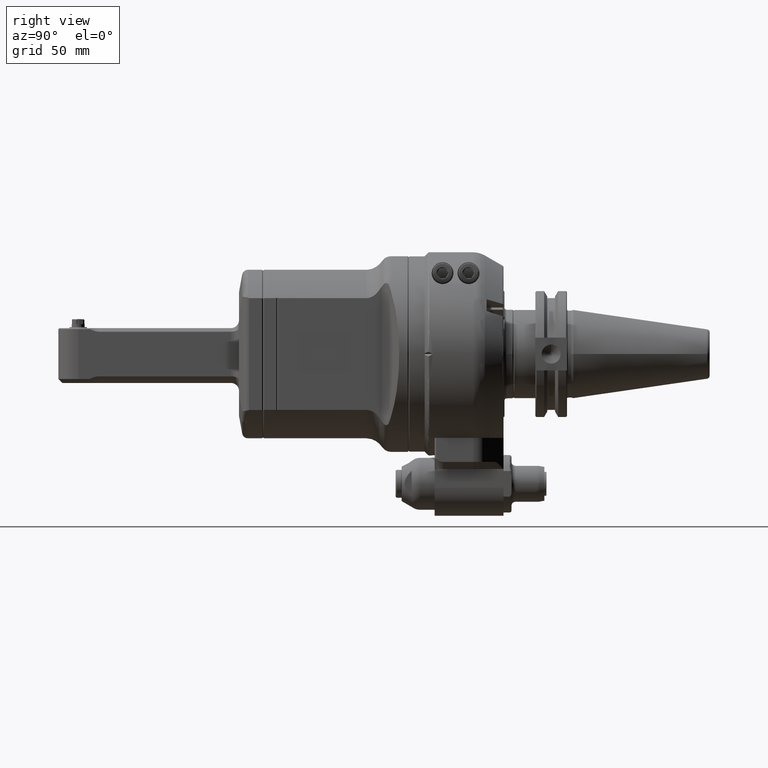
[diagram: clean part render]
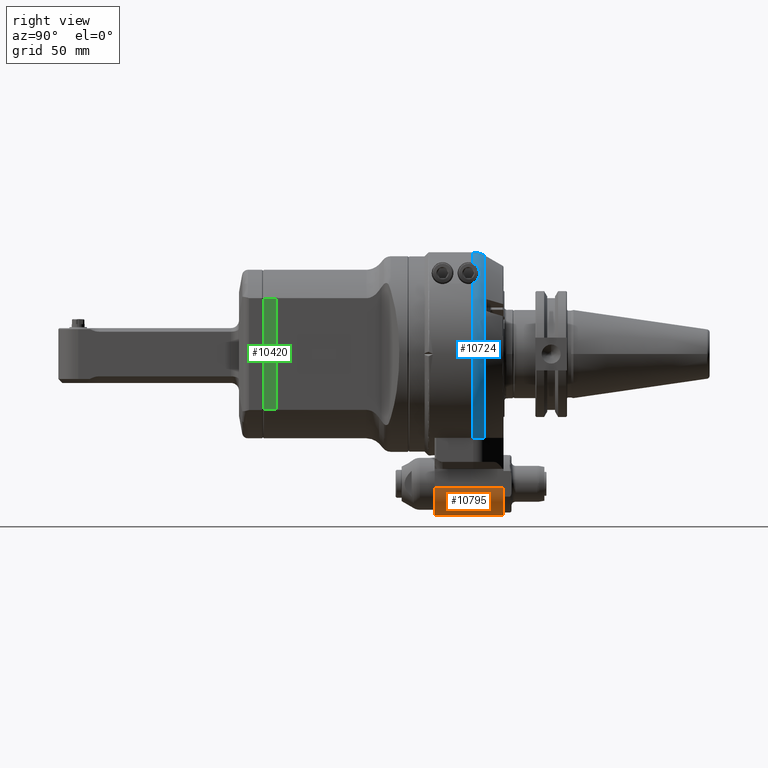
[diagram: same view with three faces highlighted in distinct colors, each labeled with its STEP entity id]
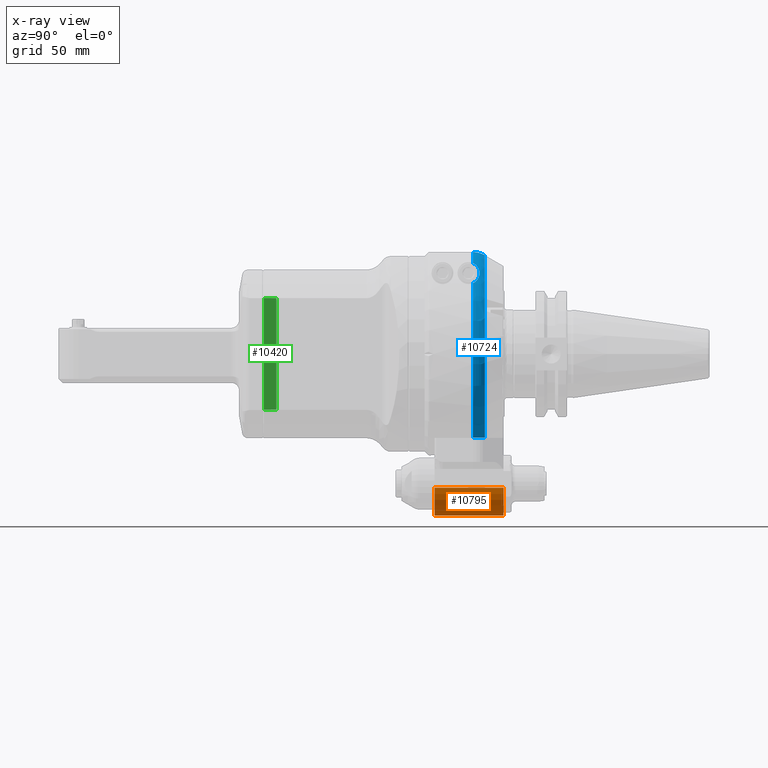
[diagram: x-ray of the same camera — body ghosted, the three highlighted faces saturated]
A machine part, right view with three faces highlighted in distinct colors.
The next image is the same camera in x-ray (body ghosted, the three faces saturated) — at least one of them is partly hidden behind the body in this view.
Their STEP definitions:

[orange] entity #10795 — the highlighted cylindrical surface (edge-blend (fillet) strip) has radius 14 mm, axis along (0, 1, 0).
#1026=LINE('',#20557,#1758);
#1027=LINE('',#20572,#1759);
#1758=VECTOR('',#14537,1.35826771653543);
#1759=VECTOR('',#14546,1.35826771653543);
#2132=CYLINDRICAL_SURFACE('',#11974,0.551181102362205);
#2596=FACE_OUTER_BOUND('',#3290,.T.);
#3290=EDGE_LOOP('',(#8838,#8839,#8840,#8841));
#3770=CIRCLE('',#11601,0.551181102362205);
#3796=CIRCLE('',#11645,0.551181102362205);
#4520=VERTEX_POINT('',#17607);
#4521=VERTEX_POINT('',#17609);
#4590=VERTEX_POINT('',#17998);
#4591=VERTEX_POINT('',#18000);
#5751=EDGE_CURVE('',#4520,#4521,#3770,.T.);
#5837=EDGE_CURVE('',#4590,#4591,#3796,.T.);
#6228=EDGE_CURVE('',#4590,#4521,#1026,.T.);
#6232=EDGE_CURVE('',#4520,#4591,#1027,.T.);
#8838=ORIENTED_EDGE('',*,*,#6232,.T.);
#8839=ORIENTED_EDGE('',*,*,#5837,.F.);
#8840=ORIENTED_EDGE('',*,*,#6228,.T.);
#8841=ORIENTED_EDGE('',*,*,#5751,.F.);
#10795=ADVANCED_FACE('',(#2596),#2132,.T.);
#11601=AXIS2_PLACEMENT_3D('',#17610,#13582,#13583);
#11645=AXIS2_PLACEMENT_3D('',#18001,#13719,#13720);
#11974=AXIS2_PLACEMENT_3D('',#20571,#14544,#14545);
#13582=DIRECTION('center_axis',(0.,-1.,0.));
#13583=DIRECTION('ref_axis',(0.,0.,-1.));
#13719=DIRECTION('center_axis',(0.,1.,0.));
#13720=DIRECTION('ref_axis',(1.,0.,0.));
#14537=DIRECTION('',(0.,-1.,0.));
#14544=DIRECTION('center_axis',(0.,1.,0.));
#14545=DIRECTION('ref_axis',(0.,0.,1.));
#14546=DIRECTION('',(0.,1.,0.));
#17607=CARTESIAN_POINT('',(0.0393700787401575,0.196850393700787,-3.18897637795276));
#17609=CARTESIAN_POINT('',(0.590551181102362,0.196850393700787,-2.63779527559055));
#17610=CARTESIAN_POINT('Origin',(0.0393700787401575,0.196850393700787,-2.63779527559055));
#17998=CARTESIAN_POINT('',(0.590551181102362,1.55511811023622,-2.63779527559055));
#18000=CARTESIAN_POINT('',(0.0393700787401575,1.55511811023622,-3.18897637795276));
#18001=CARTESIAN_POINT('Origin',(0.0393700787401575,1.55511811023622,-2.63779527559055));
#20557=CARTESIAN_POINT('',(0.590551181102362,1.55511811023622,-2.63779527559055));
#20571=CARTESIAN_POINT('Origin',(0.0393700787401575,1.22047244094488,-2.63779527559055));
#20572=CARTESIAN_POINT('',(0.0393700787401575,0.196850393700787,-3.18897637795276));

[blue] entity #10724 — the highlighted toroidal blend (fillet) surface has major radius 39 mm and minor (blend) radius 12 mm.
#240=TOROIDAL_SURFACE('',#11848,1.53543307086614,0.47244094488189);
#470=B_SPLINE_CURVE_WITH_KNOTS('',3,(#19716,#19717,#19718,#19719,#19720,
#19721,#19722,#19723,#19724,#19725,#19726,#19727,#19728,#19729,#19730,#19731,
#19732,#19733,#19734,#19735,#19736,#19737,#19738,#19739,#19740,#19741,#19742,
#19743,#19744,#19745,#19746,#19747,#19748,#19749,#19750,#19751,#19752,#19753,
#19754,#19755,#19756,#19757,#19758,#19759,#19760,#19761,#19762,#19763,#19764),
 .UNSPECIFIED.,.F.,.F.,(4,3,3,3,3,3,3,3,3,3,3,3,3,3,3,3,4),(1.63314830216971E-10,
0.0625,0.125,0.1875,0.25,0.3125,0.375,0.4375,0.5,0.5625,0.625,0.6875,0.75,
0.8125,0.875,0.9375,1.),.UNSPECIFIED.);
#472=B_SPLINE_CURVE_WITH_KNOTS('',3,(#19818,#19819,#19820,#19821,#19822,
#19823,#19824,#19825),.UNSPECIFIED.,.F.,.F.,(4,2,2,4),(-0.594227847708127,
-0.444215565867735,-0.222107782933867,0.),.UNSPECIFIED.);
#473=B_SPLINE_CURVE_WITH_KNOTS('',3,(#19826,#19827,#19828,#19829,#19830,
#19831,#19832,#19833,#19834,#19835,#19836,#19837,#19838,#19839,#19840,#19841,
#19842,#19843,#19844,#19845),.UNSPECIFIED.,.F.,.F.,(4,2,2,2,2,2,2,2,2,4),
(-4.91913814154316,-4.58748623361205,-4.32306617361763,-4.16790956586227,
-4.04086273706546,-3.90308926242449,-3.70723915094824,-3.37949336782339,
-3.16249646482945,-3.12273254153702),.UNSPECIFIED.);
#2525=FACE_OUTER_BOUND('',#3208,.T.);
#3208=EDGE_LOOP('',(#8484,#8485,#8486,#8487,#8488,#8489));
#3773=CIRCLE('',#11605,2.00787401574803);
#3774=CIRCLE('',#11606,2.00787401574803);
#3900=CIRCLE('',#11843,1.94457893092165);
#4530=VERTEX_POINT('',#17673);
#4531=VERTEX_POINT('',#17675);
#4533=VERTEX_POINT('',#17684);
#4534=VERTEX_POINT('',#17711);
#4747=VERTEX_POINT('',#19698);
#4748=VERTEX_POINT('',#19703);
#5762=EDGE_CURVE('',#4531,#4530,#3773,.T.);
#5765=EDGE_CURVE('',#4534,#4533,#3774,.T.);
#6078=EDGE_CURVE('',#4747,#4748,#3900,.T.);
#6079=EDGE_CURVE('',#4747,#4530,#470,.T.);
#6086=EDGE_CURVE('',#4748,#4534,#472,.T.);
#6087=EDGE_CURVE('',#4533,#4531,#473,.T.);
#8484=ORIENTED_EDGE('',*,*,#6079,.F.);
#8485=ORIENTED_EDGE('',*,*,#6078,.T.);
#8486=ORIENTED_EDGE('',*,*,#6086,.T.);
#8487=ORIENTED_EDGE('',*,*,#5765,.T.);
#8488=ORIENTED_EDGE('',*,*,#6087,.T.);
#8489=ORIENTED_EDGE('',*,*,#5762,.T.);
#10724=ADVANCED_FACE('',(#2525),#240,.T.);
#11605=AXIS2_PLACEMENT_3D('',#17676,#13596,#13597);
#11606=AXIS2_PLACEMENT_3D('',#17712,#13598,#13599);
#11843=AXIS2_PLACEMENT_3D('',#19714,#14217,#14218);
#11848=AXIS2_PLACEMENT_3D('',#19817,#14229,#14230);
#13596=DIRECTION('center_axis',(0.,1.,0.));
#13597=DIRECTION('ref_axis',(0.719066469693323,0.,0.694941301235422));
#13598=DIRECTION('center_axis',(0.,1.,0.));
#13599=DIRECTION('ref_axis',(0.0294117647058804,0.,0.999567380468613));
#14217=DIRECTION('center_axis',(0.,-1.,0.));
#14218=DIRECTION('ref_axis',(0.526241939180605,0.,-0.850334887822108));
#14229=DIRECTION('center_axis',(0.,-1.,0.));
#14230=DIRECTION('ref_axis',(0.,0.,1.));
#17673=CARTESIAN_POINT('',(1.13901386940866,0.951191103850394,-1.65354330708661));
#17675=CARTESIAN_POINT('',(1.44379488009252,0.951191103854331,1.39535458122087));
#17676=CARTESIAN_POINT('Origin',(0.,0.951191103851969,0.));
#17684=CARTESIAN_POINT('',(0.902484810701969,0.951191103851969,1.79362181899291));
#17711=CARTESIAN_POINT('',(0.0590551170510557,0.951191103851969,2.00700537026339));
#17712=CARTESIAN_POINT('Origin',(0.,0.951191103851969,0.));
#19698=CARTESIAN_POINT('',(1.02331898735999,1.18741157637983,-1.65354330711293));
#19703=CARTESIAN_POINT('',(0.0590551219020135,1.18741200863102,1.94368174871452));
#19714=CARTESIAN_POINT('Origin',(0.,1.18741157629291,0.));
#19716=CARTESIAN_POINT('Ctrl Pts',(1.02331898737572,1.18741157639708,-1.65354330709157));
#19717=CARTESIAN_POINT('Ctrl Pts',(1.0287285601007,1.182480871083,-1.65354330709318));
#19718=CARTESIAN_POINT('Ctrl Pts',(1.03389939424783,1.1775336087816,-1.65354331005434));
#19719=CARTESIAN_POINT('Ctrl Pts',(1.03883884705827,1.1725799796166,-1.65354330708646));
#19720=CARTESIAN_POINT('Ctrl Pts',(1.04377829988161,1.16762635043865,-1.65354330411858));
#19721=CARTESIAN_POINT('Ctrl Pts',(1.04848639933835,1.16266638039419,-1.65354333930574));
#19722=CARTESIAN_POINT('Ctrl Pts',(1.05297455530298,1.15770620271335,-1.65354330708648));
#19723=CARTESIAN_POINT('Ctrl Pts',(1.0574627112676,1.1527460250325,-1.65354327486722));
#19724=CARTESIAN_POINT('Ctrl Pts',(1.06173097610261,1.14778568997259,-1.6535432581055));
#19725=CARTESIAN_POINT('Ctrl Pts',(1.06579627774557,1.14282251717138,-1.65354330708653));
#19726=CARTESIAN_POINT('Ctrl Pts',(1.06986157938853,1.13785934437016,-1.65354335606756));
#19727=CARTESIAN_POINT('Ctrl Pts',(1.07372383930217,1.1328932690729,-1.65354334887672));
#19728=CARTESIAN_POINT('Ctrl Pts',(1.07738964518286,1.12793245544907,-1.65354330708659));
#19729=CARTESIAN_POINT('Ctrl Pts',(1.08105545106355,1.12297164182524,-1.65354326529646));
#19730=CARTESIAN_POINT('Ctrl Pts',(1.08452487177625,1.11801613886991,-1.6535432941964));
#19731=CARTESIAN_POINT('Ctrl Pts',(1.08781154395333,1.11306317919946,-1.65354330708658));
#19732=CARTESIAN_POINT('Ctrl Pts',(1.0910982161304,1.10811021952901,-1.65354331997676));
#19733=CARTESIAN_POINT('Ctrl Pts',(1.09420211550289,1.10315979034438,-1.65354328059421));
#19734=CARTESIAN_POINT('Ctrl Pts',(1.09713269909165,1.09821169686784,-1.65354330708659));
#19735=CARTESIAN_POINT('Ctrl Pts',(1.10006328268041,1.0932636033913,-1.65354333357897));
#19736=CARTESIAN_POINT('Ctrl Pts',(1.10282050508038,1.08831781586006,-1.65354335702779));
#19737=CARTESIAN_POINT('Ctrl Pts',(1.10540946426705,1.08338100043707,-1.65354330708659));
#19738=CARTESIAN_POINT('Ctrl Pts',(1.10799842345371,1.07844418501408,-1.65354325714539));
#19739=CARTESIAN_POINT('Ctrl Pts',(1.1104192054285,1.07351638755008,-1.65354326255533));
#19740=CARTESIAN_POINT('Ctrl Pts',(1.11268294280324,1.06858993809959,-1.65354330708655));
#19741=CARTESIAN_POINT('Ctrl Pts',(1.11494668017798,1.0636634886491,-1.65354335161777));
#19742=CARTESIAN_POINT('Ctrl Pts',(1.11705329178463,1.05873835174854,-1.6535433149294));
#19743=CARTESIAN_POINT('Ctrl Pts',(1.11900654285839,1.05381928095643,-1.6535433070866));
#19744=CARTESIAN_POINT('Ctrl Pts',(1.12095979393215,1.04890021016432,-1.6535432992438));
#19745=CARTESIAN_POINT('Ctrl Pts',(1.12275969778416,1.04398720756442,-1.65354333950807));
#19746=CARTESIAN_POINT('Ctrl Pts',(1.12441116677829,1.03908281547795,-1.65354330708662));
#19747=CARTESIAN_POINT('Ctrl Pts',(1.12606263577241,1.03417842339149,-1.65354327466517));
#19748=CARTESIAN_POINT('Ctrl Pts',(1.12756573214681,1.02928266492709,-1.65354326130613));
#19749=CARTESIAN_POINT('Ctrl Pts',(1.12892724865645,1.02438721012888,-1.65354330708664));
#19750=CARTESIAN_POINT('Ctrl Pts',(1.13028876516608,1.01949175533066,-1.65354335286714));
#19751=CARTESIAN_POINT('Ctrl Pts',(1.13150861467099,1.0145965803473,-1.65354333020775));
#19752=CARTESIAN_POINT('Ctrl Pts',(1.13258854902311,1.00970758941883,-1.65354330708663));
#19753=CARTESIAN_POINT('Ctrl Pts',(1.13366848337522,1.00481859849037,-1.6535432839655));
#19754=CARTESIAN_POINT('Ctrl Pts',(1.13460854488941,0.999935798600189,-1.6535433219759));
#19755=CARTESIAN_POINT('Ctrl Pts',(1.13541217031644,0.995057908472053,-1.65354330708667));
#19756=CARTESIAN_POINT('Ctrl Pts',(1.13621579574348,0.990180018343917,-1.65354329219743));
#19757=CARTESIAN_POINT('Ctrl Pts',(1.13688301706455,0.985307045504916,-1.65354327110499));
#19758=CARTESIAN_POINT('Ctrl Pts',(1.13741639560676,0.98043197503399,-1.65354330708662));
#19759=CARTESIAN_POINT('Ctrl Pts',(1.13794977414898,0.975556904563064,-1.65354334306825));
#19760=CARTESIAN_POINT('Ctrl Pts',(1.13834923748645,0.970679728204046,-1.65354333083451));
#19761=CARTESIAN_POINT('Ctrl Pts',(1.13861525113638,0.965805669051704,-1.65354330708655));
#19762=CARTESIAN_POINT('Ctrl Pts',(1.1388812647863,0.960931609899362,-1.6535432833386));
#19763=CARTESIAN_POINT('Ctrl Pts',(1.13901386940866,0.95606066881496,-1.65354330708661));
#19764=CARTESIAN_POINT('Ctrl Pts',(1.13901386940865,0.951191103850394,-1.65354330708659));
#19817=CARTESIAN_POINT('Origin',(0.,0.951191103851969,0.));
#19818=CARTESIAN_POINT('Ctrl Pts',(0.0590551181102362,1.18741200869209,
1.94368174882024));
#19819=CARTESIAN_POINT('Ctrl Pts',(0.0590551181102362,1.16898058275116,
1.95432807411386));
#19820=CARTESIAN_POINT('Ctrl Pts',(0.0590551181102362,1.15014145628158,
1.96350524390092));
#19821=CARTESIAN_POINT('Ctrl Pts',(0.0590551181102362,1.10502569486451,
1.98219726143907));
#19822=CARTESIAN_POINT('Ctrl Pts',(0.0590551181102362,1.07451566371992,
1.99172470302084));
#19823=CARTESIAN_POINT('Ctrl Pts',(0.0590551181102362,1.01217237183944,
2.00412876807738));
#19824=CARTESIAN_POINT('Ctrl Pts',(0.0590551181102362,0.980339106861663,
2.00700537023226));
#19825=CARTESIAN_POINT('Ctrl Pts',(0.0590551181102362,0.951191103851969,
2.00700537023226));
#19826=CARTESIAN_POINT('Ctrl Pts',(0.902484810701923,0.951191103851972,
1.79362181899319));
#19827=CARTESIAN_POINT('Ctrl Pts',(0.929266347923859,0.982742457861792,
1.78014633029535));
#19828=CARTESIAN_POINT('Ctrl Pts',(0.962396476322376,1.01113316047456,1.75911380952405));
#19829=CARTESIAN_POINT('Ctrl Pts',(1.03267499845791,1.05125184193167,1.71028042858822));
#19830=CARTESIAN_POINT('Ctrl Pts',(1.06501256194761,1.06367873803511,1.6866606508205));
#19831=CARTESIAN_POINT('Ctrl Pts',(1.11622343136875,1.07624550142893,1.64889945121527));
#19832=CARTESIAN_POINT('Ctrl Pts',(1.13513831478466,1.07934065752876,1.6348577497675));
#19833=CARTESIAN_POINT('Ctrl Pts',(1.16909850326603,1.08245353491882,1.60959242195405));
#19834=CARTESIAN_POINT('Ctrl Pts',(1.18425118377326,1.08292917682087,1.59829709473754));
#19835=CARTESIAN_POINT('Ctrl Pts',(1.21529570927765,1.08214679978915,1.57512621924728));
#19836=CARTESIAN_POINT('Ctrl Pts',(1.23124697628855,1.08073590843215,1.56320350553381));
#19837=CARTESIAN_POINT('Ctrl Pts',(1.26896892191637,1.07501556862056,1.53494110381334));
#19838=CARTESIAN_POINT('Ctrl Pts',(1.29077487335708,1.06966861268813,1.51854773509639));
#19839=CARTESIAN_POINT('Ctrl Pts',(1.34629114738435,1.04997605736943,1.47642121652898));
#19840=CARTESIAN_POINT('Ctrl Pts',(1.37632564977765,1.03264401959136,1.45318558748385));
#19841=CARTESIAN_POINT('Ctrl Pts',(1.41517805177112,0.99779439670498,1.42155275376077));
#19842=CARTESIAN_POINT('Ctrl Pts',(1.42897303617719,0.981187270589055,1.40979615963919));
#19843=CARTESIAN_POINT('Ctrl Pts',(1.44061682641204,0.958454140044534,1.39857641610629));
#19844=CARTESIAN_POINT('Ctrl Pts',(1.44228119982922,0.954858252723087,1.39692080950719));
#19845=CARTESIAN_POINT('Ctrl Pts',(1.44379488009305,0.951191103854678,1.39535458122056));

[green] entity #10420 — the highlighted planar face has unit normal (-1, -0, 0).
#607=LINE('',#16174,#1339);
#609=LINE('',#16185,#1341);
#610=LINE('',#16187,#1342);
#611=LINE('',#16188,#1343);
#1339=VECTOR('',#12598,6.2);
#1341=VECTOR('',#12610,55.93746508379);
#1342=VECTOR('',#12611,6.2);
#1343=VECTOR('',#12612,55.93746508379);
#2221=FACE_OUTER_BOUND('',#2866,.T.);
#2866=EDGE_LOOP('',(#6948,#6949,#6950,#6951));
#4241=VERTEX_POINT('',#16172);
#4242=VERTEX_POINT('',#16173);
#4246=VERTEX_POINT('',#16184);
#4247=VERTEX_POINT('',#16186);
#5299=EDGE_CURVE('',#4241,#4242,#607,.T.);
#5305=EDGE_CURVE('',#4246,#4241,#609,.T.);
#5306=EDGE_CURVE('',#4247,#4246,#610,.T.);
#5307=EDGE_CURVE('',#4247,#4242,#611,.T.);
#6948=ORIENTED_EDGE('',*,*,#5299,.F.);
#6949=ORIENTED_EDGE('',*,*,#5305,.F.);
#6950=ORIENTED_EDGE('',*,*,#5306,.F.);
#6951=ORIENTED_EDGE('',*,*,#5307,.T.);
#9914=PLANE('',#11215);
#10420=ADVANCED_FACE('',(#2221),#9914,.F.);
#11215=AXIS2_PLACEMENT_3D('',#16183,#12608,#12609);
#12598=DIRECTION('',(-1.,0.,0.));
#12608=DIRECTION('center_axis',(0.,0.,-1.));
#12609=DIRECTION('ref_axis',(1.,0.,0.));
#12610=DIRECTION('',(0.,-1.,0.));
#12611=DIRECTION('',(1.,0.,0.));
#12612=DIRECTION('',(0.,-1.,0.));
#16172=CARTESIAN_POINT('',(68.5,-27.96873254189,32.));
#16173=CARTESIAN_POINT('',(62.3,-27.96873254189,32.));
#16174=CARTESIAN_POINT('',(68.5,-27.96873254189,32.));
#16183=CARTESIAN_POINT('Origin',(33.,-73.8946861816,32.));
#16184=CARTESIAN_POINT('',(68.5,27.96873254189,32.));
#16185=CARTESIAN_POINT('',(68.5,27.96873254189,32.));
#16186=CARTESIAN_POINT('',(62.3,27.96873254189,32.));
#16187=CARTESIAN_POINT('',(62.3,27.96873254189,32.));
#16188=CARTESIAN_POINT('',(62.3,27.96873254189,32.));